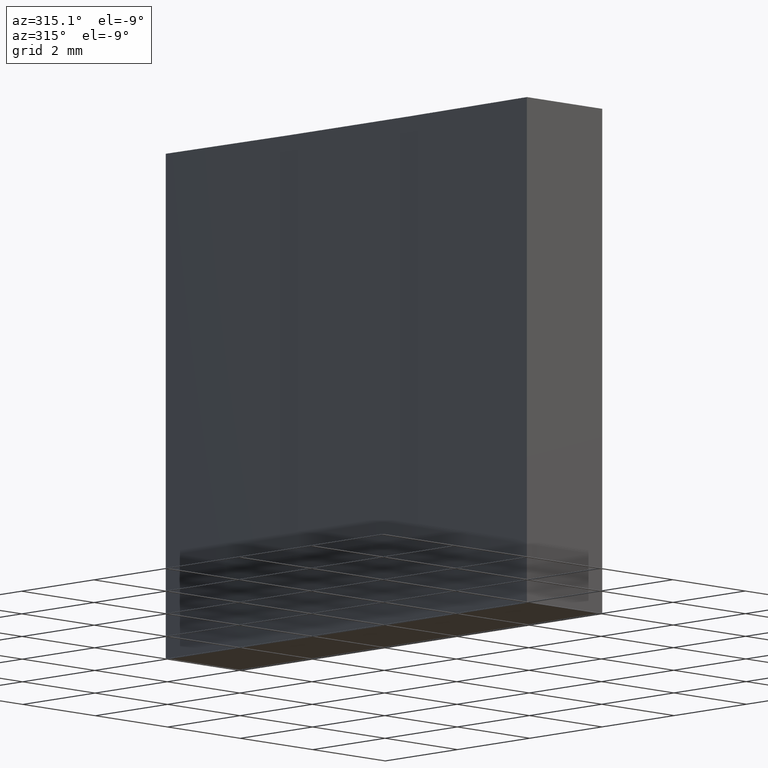
[diagram: clean part render]
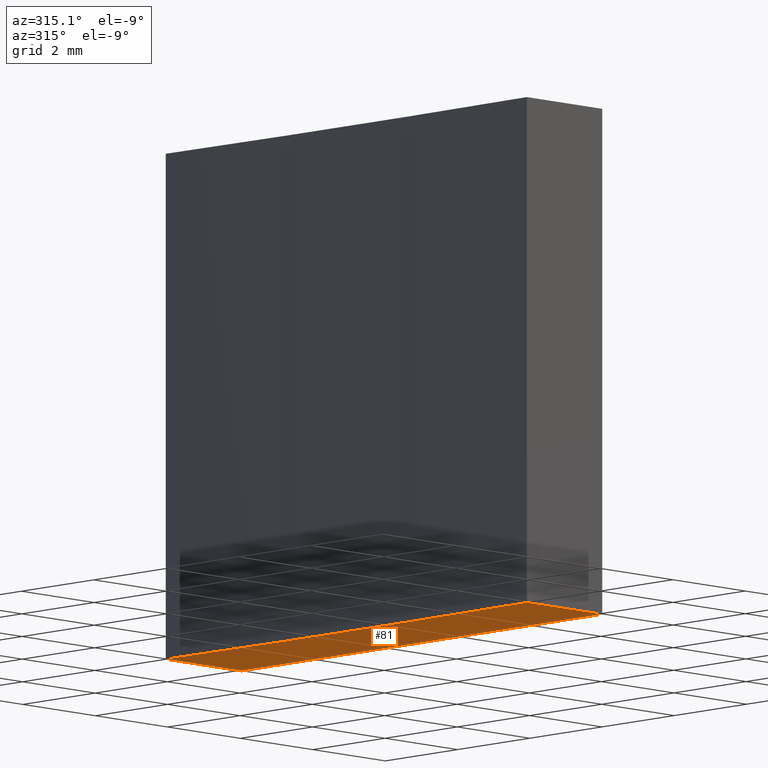
[diagram: same view with one face highlighted and labeled with its STEP entity id]
A machine part, auxiliary view. The second image highlights one B-rep face of the part: STEP entity #81.
In plain terms, the highlighted planar face has unit normal (0, 0, 1).
Its self-contained STEP definition (entity closure, byte-faithful):
#14 = EDGE_CURVE ( 'NONE', #208, #173, #41, .T. ) ;
#27 = EDGE_LOOP ( 'NONE', ( #225, #148, #169, #130 ) ) ;
#39 = VECTOR ( 'NONE', #87, 1000.000000000000000 ) ;
#41 = LINE ( 'NONE', #187, #165 ) ;
#46 = CIRCLE ( 'NONE', #185, 155.0999999999999659 ) ;
#48 = DIRECTION ( 'NONE',  ( -0.000000000000000000, -0.000000000000000000, -1.000000000000000000 ) ) ;
#56 = VERTEX_POINT ( 'NONE', #115 ) ;
#81 = ADVANCED_FACE ( 'NONE', ( #140 ), #155, .F. ) ;
#87 = DIRECTION ( 'NONE',  ( 1.387778780781445478E-15, 1.000000000000000000, -0.000000000000000000 ) ) ;
#91 = CARTESIAN_POINT ( 'NONE',  ( -84.07381200594568327, -46.01151266271130424, 0.000000000000000000 ) ) ;
#97 = EDGE_CURVE ( 'NONE', #128, #56, #151, .T. ) ;
#103 = CARTESIAN_POINT ( 'NONE',  ( 73.02557387853005366, -41.01151266271152451, 0.000000000000000000 ) ) ;
#115 = CARTESIAN_POINT ( 'NONE',  ( 70.94557387853005537, -41.01151266271152451, 0.000000000000000000 ) ) ;
#116 = LINE ( 'NONE', #176, #39 ) ;
#128 = VERTEX_POINT ( 'NONE', #103 ) ;
#130 = ORIENTED_EDGE ( 'NONE', *, *, #14, .F. ) ;
#138 = CARTESIAN_POINT ( 'NONE',  ( 70.94557387853004116, -51.01151266271151030, 0.000000000000000000 ) ) ;
#140 = FACE_OUTER_BOUND ( 'NONE', #27, .T. ) ;
#148 = ORIENTED_EDGE ( 'NONE', *, *, #97, .F. ) ;
#151 = LINE ( 'NONE', #239, #226 ) ;
#155 = PLANE ( 'NONE',  #193 ) ;
#158 = DIRECTION ( 'NONE',  ( 1.000000000000000000, 0.000000000000000000, 0.000000000000000000 ) ) ;
#162 = DIRECTION ( 'NONE',  ( -1.000000000000000000, -0.000000000000000000, -0.000000000000000000 ) ) ;
#165 = VECTOR ( 'NONE', #168, 1000.000000000000000 ) ;
#167 = EDGE_CURVE ( 'NONE', #56, #208, #46, .T. ) ;
#168 = DIRECTION ( 'NONE',  ( 1.000000000000000000, -6.672013369141570542E-15, 0.000000000000000000 ) ) ;
#169 = ORIENTED_EDGE ( 'NONE', *, *, #184, .F. ) ;
#173 = VERTEX_POINT ( 'NONE', #218 ) ;
#176 = CARTESIAN_POINT ( 'NONE',  ( 73.02557387853005366, -41.01151266271152451, 0.000000000000000000 ) ) ;
#180 = CARTESIAN_POINT ( 'NONE',  ( -84.07381200594568327, -46.01151266271130424, 0.000000000000000000 ) ) ;
#184 = EDGE_CURVE ( 'NONE', #173, #128, #116, .T. ) ;
#185 = AXIS2_PLACEMENT_3D ( 'NONE', #180, #48, #158 ) ;
#187 = CARTESIAN_POINT ( 'NONE',  ( 70.94557387853004116, -51.01151266271151030, 0.000000000000000000 ) ) ;
#193 = AXIS2_PLACEMENT_3D ( 'NONE', #91, #216, #199 ) ;
#199 = DIRECTION ( 'NONE',  ( 1.000000000000000000, 0.000000000000000000, -0.000000000000000000 ) ) ;
#208 = VERTEX_POINT ( 'NONE', #138 ) ;
#216 = DIRECTION ( 'NONE',  ( 0.000000000000000000, 0.000000000000000000, 1.000000000000000000 ) ) ;
#218 = CARTESIAN_POINT ( 'NONE',  ( 73.02557387853003945, -51.01151266271152451, 0.000000000000000000 ) ) ;
#225 = ORIENTED_EDGE ( 'NONE', *, *, #167, .F. ) ;
#226 = VECTOR ( 'NONE', #162, 1000.000000000000000 ) ;
#239 = CARTESIAN_POINT ( 'NONE',  ( 70.94557387853005537, -41.01151266271152451, 0.000000000000000000 ) ) ;